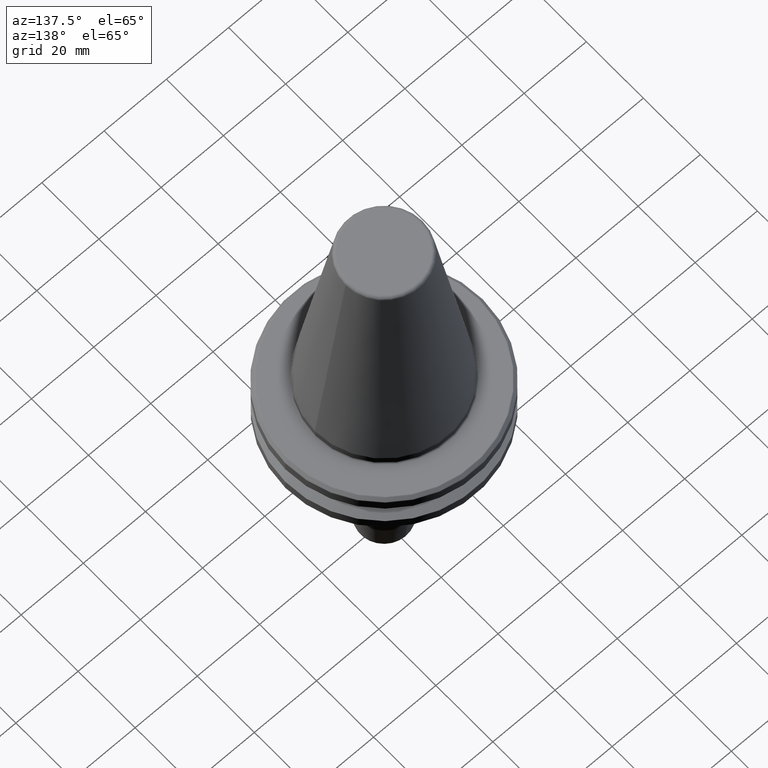
[diagram: clean part render]
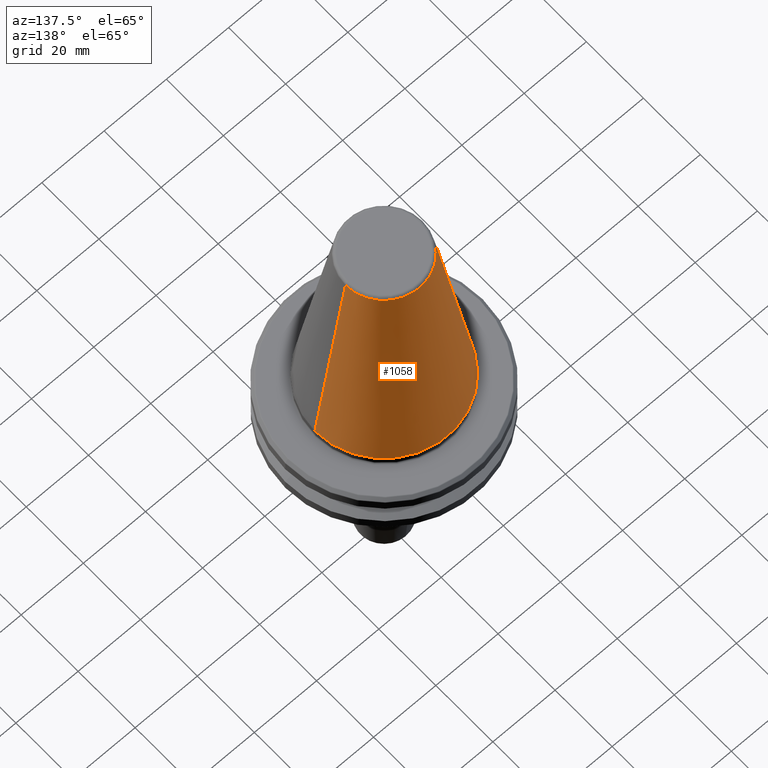
[diagram: same view with one face highlighted and labeled with its STEP entity id]
A machine part, auxiliary view. The second image highlights one B-rep face of the part: STEP entity #1058.
In plain terms, the highlighted conical surface has half-angle 8.297 deg.
Its self-contained STEP definition (entity closure, byte-faithful):
#51 = CARTESIAN_POINT ( 'NONE',  ( 0.0000000000000000000, 0.0000000000000000000, 67.54430822726729400 ) ) ;
#61 = ORIENTED_EDGE ( 'NONE', *, *, #1036, .T. ) ;
#92 = DIRECTION ( 'NONE',  ( 1.000000000000000000, 0.0000000000000000000, 0.0000000000000000000 ) ) ;
#116 = DIRECTION ( 'NONE',  ( 0.1443082272673071000, 1.767266086135364600E-017, -0.9895327864921743500 ) ) ;
#120 = EDGE_CURVE ( 'NONE', #443, #200, #1205, .T. ) ;
#155 = ORIENTED_EDGE ( 'NONE', *, *, #1204, .F. ) ;
#190 = DIRECTION ( 'NONE',  ( -1.000000000000000000, 0.0000000000000000000, 0.0000000000000000000 ) ) ;
#200 = VERTEX_POINT ( 'NONE', #690 ) ;
#222 = CARTESIAN_POINT ( 'NONE',  ( 12.37469537611110800, 1.515463108277802100E-015, 67.54430822726729400 ) ) ;
#239 = ORIENTED_EDGE ( 'NONE', *, *, #249, .F. ) ;
#244 = ORIENTED_EDGE ( 'NONE', *, *, #120, .T. ) ;
#249 = EDGE_CURVE ( 'NONE', #443, #791, #365, .T. ) ;
#251 = FACE_OUTER_BOUND ( 'NONE', #832, .T. ) ;
#269 = CARTESIAN_POINT ( 'NONE',  ( -12.37469537611110800, 0.0000000000000000000, 67.54430822726729400 ) ) ;
#363 = LINE ( 'NONE', #405, #835 ) ;
#365 = CIRCLE ( 'NONE', #596, 12.37469537611110800 ) ;
#405 = CARTESIAN_POINT ( 'NONE',  ( -12.37469537611110800, 0.0000000000000000000, 67.54430822726729400 ) ) ;
#418 = VECTOR ( 'NONE', #116, 1000.000000000000000 ) ;
#443 = VERTEX_POINT ( 'NONE', #951 ) ;
#457 = DIRECTION ( 'NONE',  ( -0.0000000000000000000, -0.0000000000000000000, 1.000000000000000000 ) ) ;
#574 = CARTESIAN_POINT ( 'NONE',  ( -22.22500000000000500, 2.721777511104993200E-015, 0.0000000000000000000 ) ) ;
#596 = AXIS2_PLACEMENT_3D ( 'NONE', #51, #457, #1015 ) ;
#673 = DIRECTION ( 'NONE',  ( 0.0000000000000000000, 0.0000000000000000000, -1.000000000000000000 ) ) ;
#674 = DIRECTION ( 'NONE',  ( -0.0000000000000000000, -0.0000000000000000000, 1.000000000000000000 ) ) ;
#690 = CARTESIAN_POINT ( 'NONE',  ( 22.22500000000000500, 0.0000000000000000000, 0.0000000000000000000 ) ) ;
#757 = AXIS2_PLACEMENT_3D ( 'NONE', #768, #673, #190 ) ;
#768 = CARTESIAN_POINT ( 'NONE',  ( 0.0000000000000000000, 0.0000000000000000000, 67.54430822726729400 ) ) ;
#791 = VERTEX_POINT ( 'NONE', #269 ) ;
#811 = CIRCLE ( 'NONE', #1208, 22.22500000000000500 ) ;
#832 = EDGE_LOOP ( 'NONE', ( #239, #244, #61, #155 ) ) ;
#835 = VECTOR ( 'NONE', #976, 1000.000000000000000 ) ;
#944 = CONICAL_SURFACE ( 'NONE', #757, 12.37469537611110800, 0.1448138465474191100 ) ;
#951 = CARTESIAN_POINT ( 'NONE',  ( 12.37469537611110800, 2.118620309691397700E-015, 67.54430822726729400 ) ) ;
#976 = DIRECTION ( 'NONE',  ( -0.1443082272673071000, 0.0000000000000000000, -0.9895327864921743500 ) ) ;
#997 = VERTEX_POINT ( 'NONE', #574 ) ;
#1015 = DIRECTION ( 'NONE',  ( 1.000000000000000000, 0.0000000000000000000, 0.0000000000000000000 ) ) ;
#1036 = EDGE_CURVE ( 'NONE', #200, #997, #811, .T. ) ;
#1058 = ADVANCED_FACE ( 'NONE', ( #251 ), #944, .T. ) ;
#1204 = EDGE_CURVE ( 'NONE', #791, #997, #363, .T. ) ;
#1205 = LINE ( 'NONE', #222, #418 ) ;
#1208 = AXIS2_PLACEMENT_3D ( 'NONE', #1249, #674, #92 ) ;
#1249 = CARTESIAN_POINT ( 'NONE',  ( 0.0000000000000000000, 0.0000000000000000000, 0.0000000000000000000 ) ) ;